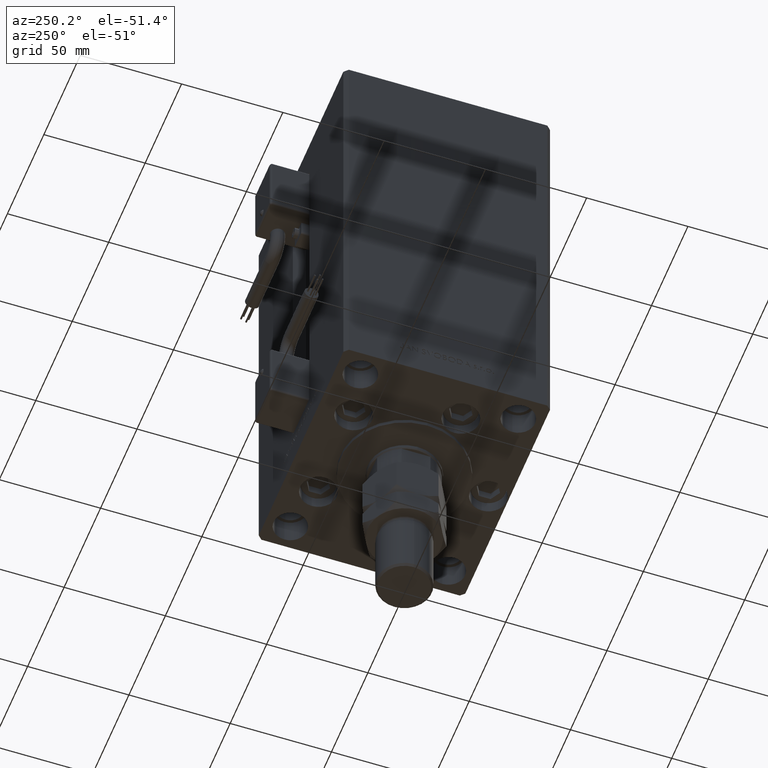
[diagram: clean part render]
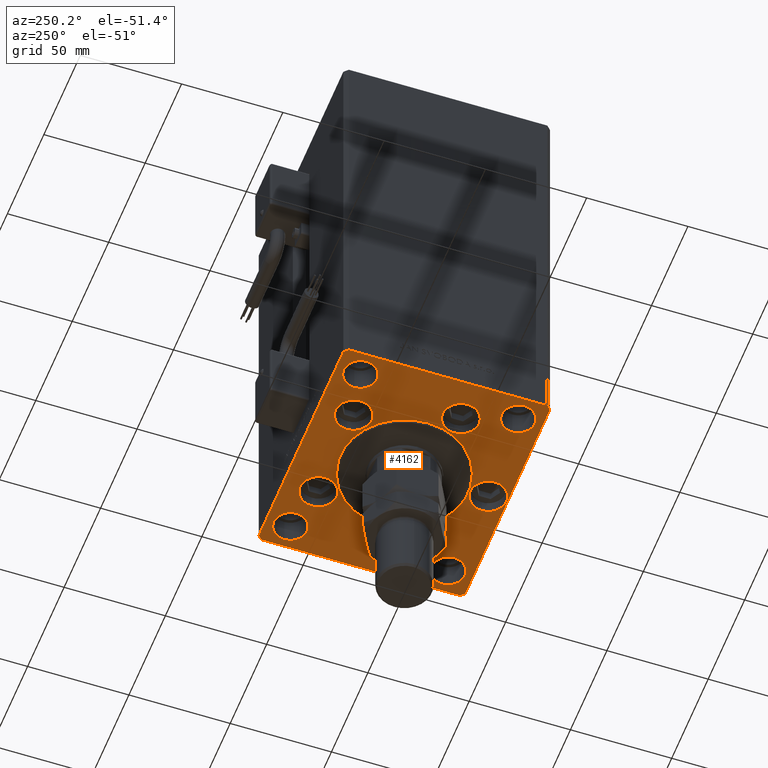
[diagram: same view with one face highlighted and labeled with its STEP entity id]
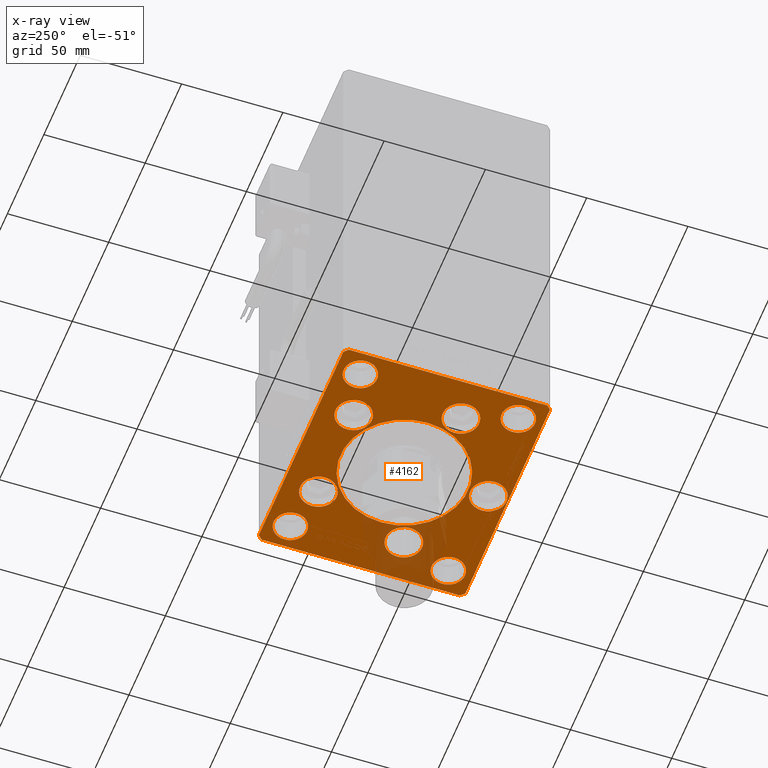
[diagram: x-ray of the same camera — body ghosted, the highlighted face saturated]
A machine part, auxiliary view. The second image highlights one B-rep face of the part: STEP entity #4162.
The next image is the same camera in x-ray: the body ghosted, the highlighted face saturated — about 12% of this face is hidden behind the body in this view.
In plain terms, the highlighted planar face has unit normal (0, 0, -1).
Its self-contained STEP definition (entity closure, byte-faithful):
#3 = DIRECTION ( 'NONE',  ( 1.000000000000000000, 0.000000000000000000, 0.000000000000000000 ) ) ;
#270 = DIRECTION ( 'NONE',  ( 0.7071067811865474617, 0.7071067811865474617, 0.000000000000000000 ) ) ;
#516 = VECTOR ( 'NONE', #43022, 1000.000000000000000 ) ;
#787 = EDGE_CURVE ( 'NONE', #1171, #52553, #13018, .T. ) ;
#1053 = CIRCLE ( 'NONE', #47989, 9.000000000000001776 ) ;
#1070 = EDGE_CURVE ( 'NONE', #28854, #34548, #48661, .T. ) ;
#1171 = VERTEX_POINT ( 'NONE', #6435 ) ;
#1208 = DIRECTION ( 'NONE',  ( 0.000000000000000000, 0.000000000000000000, 1.000000000000000000 ) ) ;
#1584 = CARTESIAN_POINT ( 'NONE',  ( 24.19288941894913592, 33.71874999999998579, 0.000000000000000000 ) ) ;
#2018 = CARTESIAN_POINT ( 'NONE',  ( -9.000000000000000000, -41.50000000000000000, 0.000000000000000000 ) ) ;
#2335 = ORIENTED_EDGE ( 'NONE', *, *, #17684, .F. ) ;
#2910 = ORIENTED_EDGE ( 'NONE', *, *, #1070, .F. ) ;
#3085 = DIRECTION ( 'NONE',  ( 0.000000000000000000, -1.000000000000000000, 0.000000000000000000 ) ) ;
#3166 = EDGE_CURVE ( 'NONE', #49114, #26949, #14690, .T. ) ;
#3219 = CIRCLE ( 'NONE', #29286, 9.000000000000001776 ) ;
#3311 = AXIS2_PLACEMENT_3D ( 'NONE', #31644, #10960, #24272 ) ;
#3461 = CARTESIAN_POINT ( 'NONE',  ( 48.00000000000000000, -39.00000000000001421, 0.000000000000000000 ) ) ;
#4017 = DIRECTION ( 'NONE',  ( 1.000000000000000000, 0.000000000000000000, 0.000000000000000000 ) ) ;
#4162 = ADVANCED_FACE ( 'NONE', ( #44942, #7142, #35980, #19928, #36509, #15583, #32445, #49032, #48496, #7670, #11229 ), #44413, .T. ) ;
#4231 = CARTESIAN_POINT ( 'NONE',  ( 48.00000000000000000, -39.00000000000001421, 0.000000000000000000 ) ) ;
#4404 = EDGE_CURVE ( 'NONE', #30473, #11347, #47822, .T. ) ;
#5153 = CIRCLE ( 'NONE', #44222, 9.000000000000000000 ) ;
#5740 = CARTESIAN_POINT ( 'NONE',  ( 58.00000000000000000, 51.00000000000000711, 0.000000000000000000 ) ) ;
#6017 = EDGE_LOOP ( 'NONE', ( #2335, #43637 ) ) ;
#6213 = AXIS2_PLACEMENT_3D ( 'NONE', #17546, #46118, #9642 ) ;
#6435 = CARTESIAN_POINT ( 'NONE',  ( -56.24999999999999289, -39.00000000000001421, 0.000000000000000000 ) ) ;
#6474 = VECTOR ( 'NONE', #8550, 1000.000000000000000 ) ;
#6558 = CARTESIAN_POINT ( 'NONE',  ( -15.19288941894913592, 33.71874999999998579, 0.000000000000000000 ) ) ;
#6717 = ORIENTED_EDGE ( 'NONE', *, *, #8187, .F. ) ;
#6801 = CARTESIAN_POINT ( 'NONE',  ( -24.19288941894913592, 33.71874999999998579, 0.000000000000000000 ) ) ;
#6839 = ORIENTED_EDGE ( 'NONE', *, *, #4404, .T. ) ;
#6887 = AXIS2_PLACEMENT_3D ( 'NONE', #4231, #24137, #29018 ) ;
#7142 = FACE_BOUND ( 'NONE', #6017, .T. ) ;
#7587 = LINE ( 'NONE', #52757, #48886 ) ;
#7670 = FACE_BOUND ( 'NONE', #11201, .T. ) ;
#7832 = AXIS2_PLACEMENT_3D ( 'NONE', #28272, #24452, #4017 ) ;
#7840 = CARTESIAN_POINT ( 'NONE',  ( 0.000000000000000000, -6.938893903907228378E-15, 0.000000000000000000 ) ) ;
#8187 = EDGE_CURVE ( 'NONE', #43277, #39132, #48801, .T. ) ;
#8513 = CIRCLE ( 'NONE', #11983, 9.000000000000000000 ) ;
#8550 = DIRECTION ( 'NONE',  ( 1.000000000000000000, 9.570888143320313916E-16, 0.000000000000000000 ) ) ;
#8692 = VERTEX_POINT ( 'NONE', #45988 ) ;
#8938 = DIRECTION ( 'NONE',  ( -0.000000000000000000, 0.000000000000000000, 1.000000000000000000 ) ) ;
#9642 = DIRECTION ( 'NONE',  ( 1.000000000000000000, 0.000000000000000000, 0.000000000000000000 ) ) ;
#9872 = DIRECTION ( 'NONE',  ( 0.000000000000000000, 0.000000000000000000, 1.000000000000000000 ) ) ;
#9917 = EDGE_LOOP ( 'NONE', ( #14618, #49963 ) ) ;
#10388 = CARTESIAN_POINT ( 'NONE',  ( -48.00000000000000000, 39.00000000000000711, 0.000000000000000000 ) ) ;
#10391 = VECTOR ( 'NONE', #3085, 1000.000000000000000 ) ;
#10704 = CIRCLE ( 'NONE', #45453, 8.249999999999992895 ) ;
#10744 = CARTESIAN_POINT ( 'NONE',  ( -48.00000000000000000, 39.00000000000000711, 0.000000000000000000 ) ) ;
#10874 = CARTESIAN_POINT ( 'NONE',  ( 56.24999999999999289, 39.00000000000000000, 0.000000000000000000 ) ) ;
#10960 = DIRECTION ( 'NONE',  ( 0.000000000000000000, 0.000000000000000000, 1.000000000000000000 ) ) ;
#11164 = DIRECTION ( 'NONE',  ( 0.000000000000000000, 0.000000000000000000, 1.000000000000000000 ) ) ;
#11201 = EDGE_LOOP ( 'NONE', ( #17853, #39338 ) ) ;
#11229 = FACE_OUTER_BOUND ( 'NONE', #17837, .T. ) ;
#11260 = AXIS2_PLACEMENT_3D ( 'NONE', #7840, #53003, #15752 ) ;
#11347 = VERTEX_POINT ( 'NONE', #50101 ) ;
#11592 = VERTEX_POINT ( 'NONE', #43211 ) ;
#11639 = DIRECTION ( 'NONE',  ( -0.7071067811865536790, -0.7071067811865414665, 0.000000000000000000 ) ) ;
#11983 = AXIS2_PLACEMENT_3D ( 'NONE', #40729, #36647, #49962 ) ;
#12045 = CARTESIAN_POINT ( 'NONE',  ( -33.19288941894913592, 33.71874999999998579, 0.000000000000000000 ) ) ;
#12288 = CARTESIAN_POINT ( 'NONE',  ( 60.00000000000001421, -48.99999999999992895, 0.000000000000000000 ) ) ;
#12366 = CIRCLE ( 'NONE', #45387, 9.000000000000000000 ) ;
#12895 = CARTESIAN_POINT ( 'NONE',  ( -57.99999999999998579, 50.99999999999997868, 0.000000000000000000 ) ) ;
#13002 = VERTEX_POINT ( 'NONE', #35348 ) ;
#13018 = CIRCLE ( 'NONE', #40832, 8.249999999999992895 ) ;
#13279 = CARTESIAN_POINT ( 'NONE',  ( 58.00000000000001421, -50.99999999999992184, 0.000000000000000000 ) ) ;
#13430 = DIRECTION ( 'NONE',  ( 1.000000000000000000, 0.000000000000000000, 0.000000000000000000 ) ) ;
#13447 = LINE ( 'NONE', #46900, #44840 ) ;
#13975 = ORIENTED_EDGE ( 'NONE', *, *, #45105, .F. ) ;
#14275 = CIRCLE ( 'NONE', #45538, 8.249999999999992895 ) ;
#14297 = VERTEX_POINT ( 'NONE', #13279 ) ;
#14418 = EDGE_LOOP ( 'NONE', ( #6717, #33985 ) ) ;
#14463 = CARTESIAN_POINT ( 'NONE',  ( -48.12657522565563539, -13.83333333333332682, 0.000000000000000000 ) ) ;
#14511 = ORIENTED_EDGE ( 'NONE', *, *, #47875, .T. ) ;
#14618 = ORIENTED_EDGE ( 'NONE', *, *, #16684, .F. ) ;
#14690 = CIRCLE ( 'NONE', #6887, 8.249999999999992895 ) ;
#15167 = DIRECTION ( 'NONE',  ( 0.000000000000000000, 0.000000000000000000, 1.000000000000000000 ) ) ;
#15290 = DIRECTION ( 'NONE',  ( 0.000000000000000000, 0.000000000000000000, 1.000000000000000000 ) ) ;
#15300 = CIRCLE ( 'NONE', #20530, 9.000000000000001776 ) ;
#15470 = CIRCLE ( 'NONE', #29345, 8.249999999999992895 ) ;
#15475 = CARTESIAN_POINT ( 'NONE',  ( -56.24999999999999289, 39.00000000000000711, 0.000000000000000000 ) ) ;
#15523 = EDGE_CURVE ( 'NONE', #53262, #30461, #1053, .T. ) ;
#15560 = DIRECTION ( 'NONE',  ( 1.000000000000000000, 0.000000000000000000, 0.000000000000000000 ) ) ;
#15583 = FACE_BOUND ( 'NONE', #26608, .T. ) ;
#15640 = CARTESIAN_POINT ( 'NONE',  ( -39.75000000000000711, -39.00000000000001421, 0.000000000000000000 ) ) ;
#15752 = DIRECTION ( 'NONE',  ( 1.000000000000000000, 0.000000000000000000, 0.000000000000000000 ) ) ;
#15785 = ORIENTED_EDGE ( 'NONE', *, *, #43882, .F. ) ;
#16049 = CARTESIAN_POINT ( 'NONE',  ( 56.24999999999999289, -39.00000000000001421, 0.000000000000000000 ) ) ;
#16503 = DIRECTION ( 'NONE',  ( 1.000000000000000000, 0.000000000000000000, 0.000000000000000000 ) ) ;
#16684 = EDGE_CURVE ( 'NONE', #30461, #53262, #34896, .T. ) ;
#16760 = AXIS2_PLACEMENT_3D ( 'NONE', #1584, #38867, #34800 ) ;
#16972 = VERTEX_POINT ( 'NONE', #18605 ) ;
#16983 = EDGE_LOOP ( 'NONE', ( #13975, #46044 ) ) ;
#17110 = CARTESIAN_POINT ( 'NONE',  ( 0.000000000000000000, 0.000000000000000000, 0.000000000000000000 ) ) ;
#17265 = VECTOR ( 'NONE', #270, 1000.000000000000114 ) ;
#17546 = CARTESIAN_POINT ( 'NONE',  ( 48.00000000000000000, 39.00000000000000000, 0.000000000000000000 ) ) ;
#17684 = EDGE_CURVE ( 'NONE', #37433, #22456, #12366, .T. ) ;
#17837 = EDGE_LOOP ( 'NONE', ( #40743, #51786, #33956, #14511, #38005, #42129, #6839, #19976 ) ) ;
#17853 = ORIENTED_EDGE ( 'NONE', *, *, #3166, .F. ) ;
#18237 = ORIENTED_EDGE ( 'NONE', *, *, #37052, .F. ) ;
#18343 = EDGE_CURVE ( 'NONE', #11592, #8692, #7587, .T. ) ;
#18382 = CARTESIAN_POINT ( 'NONE',  ( 60.00000000000001421, 49.00000000000002842, 0.000000000000000000 ) ) ;
#18605 = CARTESIAN_POINT ( 'NONE',  ( 9.000000000000000000, -41.50000000000000000, 0.000000000000000000 ) ) ;
#18666 = EDGE_CURVE ( 'NONE', #16972, #18902, #33273, .T. ) ;
#18902 = VERTEX_POINT ( 'NONE', #2018 ) ;
#19544 = DIRECTION ( 'NONE',  ( 0.000000000000000000, 0.000000000000000000, 1.000000000000000000 ) ) ;
#19843 = CIRCLE ( 'NONE', #3311, 9.000000000000001776 ) ;
#19894 = EDGE_CURVE ( 'NONE', #39132, #43277, #10704, .T. ) ;
#19928 = FACE_BOUND ( 'NONE', #16983, .T. ) ;
#19959 = DIRECTION ( 'NONE',  ( 0.000000000000000000, 0.000000000000000000, 1.000000000000000000 ) ) ;
#19976 = ORIENTED_EDGE ( 'NONE', *, *, #47086, .T. ) ;
#20086 = DIRECTION ( 'NONE',  ( 0.000000000000000000, 0.000000000000000000, 1.000000000000000000 ) ) ;
#20196 = DIRECTION ( 'NONE',  ( 1.000000000000000000, 0.000000000000000000, 0.000000000000000000 ) ) ;
#20390 = DIRECTION ( 'NONE',  ( 1.000000000000000000, 0.000000000000000000, 0.000000000000000000 ) ) ;
#20530 = AXIS2_PLACEMENT_3D ( 'NONE', #28062, #23157, #52264 ) ;
#20743 = ORIENTED_EDGE ( 'NONE', *, *, #18666, .F. ) ;
#21520 = VERTEX_POINT ( 'NONE', #35333 ) ;
#21605 = DIRECTION ( 'NONE',  ( -0.7071067811865536790, 0.7071067811865414665, 0.000000000000000000 ) ) ;
#22456 = VERTEX_POINT ( 'NONE', #12045 ) ;
#22676 = VERTEX_POINT ( 'NONE', #5740 ) ;
#22745 = CARTESIAN_POINT ( 'NONE',  ( 48.12657522565563539, -13.83333333333332860, 0.000000000000000000 ) ) ;
#23157 = DIRECTION ( 'NONE',  ( 0.000000000000000000, 0.000000000000000000, 1.000000000000000000 ) ) ;
#23722 = VERTEX_POINT ( 'NONE', #18382 ) ;
#23856 = DIRECTION ( 'NONE',  ( 1.000000000000000000, 0.000000000000000000, 0.000000000000000000 ) ) ;
#24137 = DIRECTION ( 'NONE',  ( 0.000000000000000000, 0.000000000000000000, 1.000000000000000000 ) ) ;
#24153 = EDGE_LOOP ( 'NONE', ( #32786, #34506 ) ) ;
#24272 = DIRECTION ( 'NONE',  ( 1.000000000000000000, 0.000000000000000000, 0.000000000000000000 ) ) ;
#24409 = CARTESIAN_POINT ( 'NONE',  ( -30.12657522565563539, -13.83333333333332860, 0.000000000000000000 ) ) ;
#24452 = DIRECTION ( 'NONE',  ( 0.000000000000000000, 0.000000000000000000, 1.000000000000000000 ) ) ;
#24736 = ORIENTED_EDGE ( 'NONE', *, *, #44522, .F. ) ;
#24770 = CARTESIAN_POINT ( 'NONE',  ( -48.00000000000000000, -39.00000000000001421, 0.000000000000000000 ) ) ;
#25142 = VECTOR ( 'NONE', #35492, 1000.000000000000000 ) ;
#25751 = EDGE_CURVE ( 'NONE', #23722, #22676, #13447, .T. ) ;
#25845 = AXIS2_PLACEMENT_3D ( 'NONE', #10388, #15290, #15560 ) ;
#26608 = EDGE_LOOP ( 'NONE', ( #2910, #45060 ) ) ;
#26684 = CARTESIAN_POINT ( 'NONE',  ( 31.50000000000000000, -3.081256486593065689E-15, 0.000000000000000000 ) ) ;
#26949 = VERTEX_POINT ( 'NONE', #38112 ) ;
#26983 = VERTEX_POINT ( 'NONE', #26684 ) ;
#27329 = CARTESIAN_POINT ( 'NONE',  ( -60.00000000000000000, 49.00000000000000000, 0.000000000000000000 ) ) ;
#27858 = CARTESIAN_POINT ( 'NONE',  ( -48.00000000000000000, -39.00000000000001421, 0.000000000000000000 ) ) ;
#28062 = CARTESIAN_POINT ( 'NONE',  ( -39.12657522565563539, -13.83333333333332860, 0.000000000000000000 ) ) ;
#28272 = CARTESIAN_POINT ( 'NONE',  ( -39.12657522565563539, -13.83333333333332860, 0.000000000000000000 ) ) ;
#28392 = DIRECTION ( 'NONE',  ( 1.000000000000000000, 0.000000000000000000, 0.000000000000000000 ) ) ;
#28854 = VERTEX_POINT ( 'NONE', #24409 ) ;
#29018 = DIRECTION ( 'NONE',  ( 1.000000000000000000, 0.000000000000000000, 0.000000000000000000 ) ) ;
#29286 = AXIS2_PLACEMENT_3D ( 'NONE', #48256, #19959, #28392 ) ;
#29345 = AXIS2_PLACEMENT_3D ( 'NONE', #10744, #1208, #34970 ) ;
#29480 = AXIS2_PLACEMENT_3D ( 'NONE', #17110, #8938, #20196 ) ;
#29520 = VECTOR ( 'NONE', #11639, 1000.000000000000000 ) ;
#29854 = VERTEX_POINT ( 'NONE', #15475 ) ;
#29995 = EDGE_CURVE ( 'NONE', #26949, #49114, #37889, .T. ) ;
#30208 = VERTEX_POINT ( 'NONE', #22745 ) ;
#30461 = VERTEX_POINT ( 'NONE', #41999 ) ;
#30473 = VERTEX_POINT ( 'NONE', #12895 ) ;
#30794 = LINE ( 'NONE', #42758, #516 ) ;
#31512 = EDGE_CURVE ( 'NONE', #21520, #30208, #3219, .T. ) ;
#31644 = CARTESIAN_POINT ( 'NONE',  ( 39.12657522565563539, -13.83333333333332860, 0.000000000000000000 ) ) ;
#32424 = AXIS2_PLACEMENT_3D ( 'NONE', #52692, #15167, #23856 ) ;
#32445 = FACE_BOUND ( 'NONE', #14418, .T. ) ;
#32786 = ORIENTED_EDGE ( 'NONE', *, *, #50894, .F. ) ;
#33268 = DIRECTION ( 'NONE',  ( 0.000000000000000000, 0.000000000000000000, 1.000000000000000000 ) ) ;
#33273 = CIRCLE ( 'NONE', #32424, 9.000000000000000000 ) ;
#33956 = ORIENTED_EDGE ( 'NONE', *, *, #46454, .T. ) ;
#33985 = ORIENTED_EDGE ( 'NONE', *, *, #19894, .F. ) ;
#34330 = EDGE_LOOP ( 'NONE', ( #20743, #24736 ) ) ;
#34506 = ORIENTED_EDGE ( 'NONE', *, *, #35964, .F. ) ;
#34548 = VERTEX_POINT ( 'NONE', #14463 ) ;
#34800 = DIRECTION ( 'NONE',  ( 1.000000000000000000, 0.000000000000000000, 0.000000000000000000 ) ) ;
#34896 = CIRCLE ( 'NONE', #16760, 9.000000000000001776 ) ;
#34970 = DIRECTION ( 'NONE',  ( 1.000000000000000000, 0.000000000000000000, 0.000000000000000000 ) ) ;
#34999 = VERTEX_POINT ( 'NONE', #12288 ) ;
#35333 = CARTESIAN_POINT ( 'NONE',  ( 30.12657522565563539, -13.83333333333332682, 0.000000000000000000 ) ) ;
#35348 = CARTESIAN_POINT ( 'NONE',  ( -39.75000000000000711, 39.00000000000000711, 0.000000000000000000 ) ) ;
#35492 = DIRECTION ( 'NONE',  ( 0.000000000000000000, 1.000000000000000000, 0.000000000000000000 ) ) ;
#35768 = LINE ( 'NONE', #44197, #25142 ) ;
#35964 = EDGE_CURVE ( 'NONE', #26983, #48942, #45186, .T. ) ;
#35980 = FACE_BOUND ( 'NONE', #9917, .T. ) ;
#36120 = DIRECTION ( 'NONE',  ( 1.000000000000000000, 0.000000000000000000, 0.000000000000000000 ) ) ;
#36385 = CARTESIAN_POINT ( 'NONE',  ( 24.19288941894913592, 33.71874999999998579, 0.000000000000000000 ) ) ;
#36509 = FACE_BOUND ( 'NONE', #34330, .T. ) ;
#36539 = DIRECTION ( 'NONE',  ( 1.000000000000000000, 0.000000000000000000, 0.000000000000000000 ) ) ;
#36647 = DIRECTION ( 'NONE',  ( 0.000000000000000000, 0.000000000000000000, 1.000000000000000000 ) ) ;
#36706 = ORIENTED_EDGE ( 'NONE', *, *, #787, .F. ) ;
#36747 = EDGE_CURVE ( 'NONE', #8692, #14297, #36860, .T. ) ;
#36860 = LINE ( 'NONE', #45831, #6474 ) ;
#37052 = EDGE_CURVE ( 'NONE', #52553, #1171, #14275, .T. ) ;
#37433 = VERTEX_POINT ( 'NONE', #6558 ) ;
#37889 = CIRCLE ( 'NONE', #43971, 8.249999999999992895 ) ;
#38005 = ORIENTED_EDGE ( 'NONE', *, *, #25751, .T. ) ;
#38032 = CARTESIAN_POINT ( 'NONE',  ( 15.19288941894913236, 33.71874999999998579, 0.000000000000000000 ) ) ;
#38112 = CARTESIAN_POINT ( 'NONE',  ( 39.75000000000000711, -39.00000000000001421, 0.000000000000000000 ) ) ;
#38867 = DIRECTION ( 'NONE',  ( 0.000000000000000000, 0.000000000000000000, 1.000000000000000000 ) ) ;
#39132 = VERTEX_POINT ( 'NONE', #52110 ) ;
#39338 = ORIENTED_EDGE ( 'NONE', *, *, #29995, .F. ) ;
#40464 = EDGE_CURVE ( 'NONE', #22676, #30473, #30794, .T. ) ;
#40486 = DIRECTION ( 'NONE',  ( 1.000000000000000000, 0.000000000000000000, 0.000000000000000000 ) ) ;
#40580 = EDGE_CURVE ( 'NONE', #34548, #28854, #15300, .T. ) ;
#40729 = CARTESIAN_POINT ( 'NONE',  ( 0.000000000000000000, -41.50000000000000000, 0.000000000000000000 ) ) ;
#40743 = ORIENTED_EDGE ( 'NONE', *, *, #18343, .T. ) ;
#40832 = AXIS2_PLACEMENT_3D ( 'NONE', #24770, #41365, #3 ) ;
#41365 = DIRECTION ( 'NONE',  ( 0.000000000000000000, 0.000000000000000000, 1.000000000000000000 ) ) ;
#41492 = CIRCLE ( 'NONE', #25845, 8.249999999999992895 ) ;
#41729 = DIRECTION ( 'NONE',  ( 0.000000000000000000, 0.000000000000000000, 1.000000000000000000 ) ) ;
#41779 = DIRECTION ( 'NONE',  ( 0.000000000000000000, 0.000000000000000000, 1.000000000000000000 ) ) ;
#41917 = CARTESIAN_POINT ( 'NONE',  ( -31.50000000000000000, -6.938893903907228378E-15, 0.000000000000000000 ) ) ;
#41999 = CARTESIAN_POINT ( 'NONE',  ( 33.19288941894913592, 33.71874999999998579, 0.000000000000000000 ) ) ;
#42129 = ORIENTED_EDGE ( 'NONE', *, *, #40464, .T. ) ;
#42243 = CARTESIAN_POINT ( 'NONE',  ( 48.00000000000000000, 39.00000000000000000, 0.000000000000000000 ) ) ;
#42565 = AXIS2_PLACEMENT_3D ( 'NONE', #50169, #41729, #13430 ) ;
#42758 = CARTESIAN_POINT ( 'NONE',  ( 58.00000000000000000, 51.00000000000000711, 0.000000000000000000 ) ) ;
#43022 = DIRECTION ( 'NONE',  ( -1.000000000000000000, -2.392722035830078972E-16, 0.000000000000000000 ) ) ;
#43055 = DIRECTION ( 'NONE',  ( 1.000000000000000000, 0.000000000000000000, 0.000000000000000000 ) ) ;
#43211 = CARTESIAN_POINT ( 'NONE',  ( -60.00000000000000000, -49.00000000000004263, 0.000000000000000000 ) ) ;
#43230 = EDGE_CURVE ( 'NONE', #29854, #13002, #41492, .T. ) ;
#43277 = VERTEX_POINT ( 'NONE', #10874 ) ;
#43410 = EDGE_LOOP ( 'NONE', ( #15785, #47917 ) ) ;
#43637 = ORIENTED_EDGE ( 'NONE', *, *, #49049, .F. ) ;
#43882 = EDGE_CURVE ( 'NONE', #13002, #29854, #15470, .T. ) ;
#43971 = AXIS2_PLACEMENT_3D ( 'NONE', #3461, #20086, #40486 ) ;
#44197 = CARTESIAN_POINT ( 'NONE',  ( 60.00000000000001421, -48.99999999999992895, 0.000000000000000000 ) ) ;
#44222 = AXIS2_PLACEMENT_3D ( 'NONE', #6801, #11164, #20390 ) ;
#44413 = PLANE ( 'NONE',  #29480 ) ;
#44522 = EDGE_CURVE ( 'NONE', #18902, #16972, #8513, .T. ) ;
#44840 = VECTOR ( 'NONE', #21605, 1000.000000000000000 ) ;
#44942 = FACE_BOUND ( 'NONE', #24153, .T. ) ;
#45060 = ORIENTED_EDGE ( 'NONE', *, *, #40580, .F. ) ;
#45105 = EDGE_CURVE ( 'NONE', #30208, #21520, #19843, .T. ) ;
#45110 = CIRCLE ( 'NONE', #11260, 31.50000000000000000 ) ;
#45186 = CIRCLE ( 'NONE', #42565, 31.50000000000000000 ) ;
#45387 = AXIS2_PLACEMENT_3D ( 'NONE', #46401, #41779, #16503 ) ;
#45453 = AXIS2_PLACEMENT_3D ( 'NONE', #42243, #9872, #43055 ) ;
#45538 = AXIS2_PLACEMENT_3D ( 'NONE', #27858, #33268, #36539 ) ;
#45690 = EDGE_LOOP ( 'NONE', ( #18237, #36706 ) ) ;
#45831 = CARTESIAN_POINT ( 'NONE',  ( -58.00000000000000711, -51.00000000000002842, 0.000000000000000000 ) ) ;
#45973 = LINE ( 'NONE', #50064, #17265 ) ;
#45988 = CARTESIAN_POINT ( 'NONE',  ( -58.00000000000000711, -51.00000000000002842, 0.000000000000000000 ) ) ;
#46044 = ORIENTED_EDGE ( 'NONE', *, *, #31512, .F. ) ;
#46118 = DIRECTION ( 'NONE',  ( 0.000000000000000000, 0.000000000000000000, 1.000000000000000000 ) ) ;
#46401 = CARTESIAN_POINT ( 'NONE',  ( -24.19288941894913592, 33.71874999999998579, 0.000000000000000000 ) ) ;
#46454 = EDGE_CURVE ( 'NONE', #14297, #34999, #45973, .T. ) ;
#46900 = CARTESIAN_POINT ( 'NONE',  ( 60.00000000000001421, 49.00000000000002842, 0.000000000000000000 ) ) ;
#47086 = EDGE_CURVE ( 'NONE', #11347, #11592, #52616, .T. ) ;
#47822 = LINE ( 'NONE', #51903, #29520 ) ;
#47875 = EDGE_CURVE ( 'NONE', #34999, #23722, #35768, .T. ) ;
#47917 = ORIENTED_EDGE ( 'NONE', *, *, #43230, .F. ) ;
#47989 = AXIS2_PLACEMENT_3D ( 'NONE', #36385, #19544, #36120 ) ;
#48256 = CARTESIAN_POINT ( 'NONE',  ( 39.12657522565563539, -13.83333333333332860, 0.000000000000000000 ) ) ;
#48496 = FACE_BOUND ( 'NONE', #45690, .T. ) ;
#48661 = CIRCLE ( 'NONE', #7832, 9.000000000000001776 ) ;
#48801 = CIRCLE ( 'NONE', #6213, 8.249999999999992895 ) ;
#48886 = VECTOR ( 'NONE', #48949, 1000.000000000000114 ) ;
#48942 = VERTEX_POINT ( 'NONE', #41917 ) ;
#48949 = DIRECTION ( 'NONE',  ( 0.7071067811865474617, -0.7071067811865474617, 0.000000000000000000 ) ) ;
#49032 = FACE_BOUND ( 'NONE', #43410, .T. ) ;
#49049 = EDGE_CURVE ( 'NONE', #22456, #37433, #5153, .T. ) ;
#49114 = VERTEX_POINT ( 'NONE', #16049 ) ;
#49962 = DIRECTION ( 'NONE',  ( 1.000000000000000000, 0.000000000000000000, 0.000000000000000000 ) ) ;
#49963 = ORIENTED_EDGE ( 'NONE', *, *, #15523, .F. ) ;
#50064 = CARTESIAN_POINT ( 'NONE',  ( 58.00000000000001421, -50.99999999999992184, 0.000000000000000000 ) ) ;
#50101 = CARTESIAN_POINT ( 'NONE',  ( -60.00000000000000000, 49.00000000000000000, 0.000000000000000000 ) ) ;
#50169 = CARTESIAN_POINT ( 'NONE',  ( 0.000000000000000000, -6.938893903907228378E-15, 0.000000000000000000 ) ) ;
#50894 = EDGE_CURVE ( 'NONE', #48942, #26983, #45110, .T. ) ;
#51786 = ORIENTED_EDGE ( 'NONE', *, *, #36747, .T. ) ;
#51903 = CARTESIAN_POINT ( 'NONE',  ( -57.99999999999998579, 50.99999999999997868, 0.000000000000000000 ) ) ;
#52110 = CARTESIAN_POINT ( 'NONE',  ( 39.75000000000000711, 39.00000000000000000, 0.000000000000000000 ) ) ;
#52264 = DIRECTION ( 'NONE',  ( 1.000000000000000000, 0.000000000000000000, 0.000000000000000000 ) ) ;
#52553 = VERTEX_POINT ( 'NONE', #15640 ) ;
#52616 = LINE ( 'NONE', #27329, #10391 ) ;
#52692 = CARTESIAN_POINT ( 'NONE',  ( 0.000000000000000000, -41.50000000000000000, 0.000000000000000000 ) ) ;
#52757 = CARTESIAN_POINT ( 'NONE',  ( -60.00000000000000000, -49.00000000000004263, 0.000000000000000000 ) ) ;
#53003 = DIRECTION ( 'NONE',  ( 0.000000000000000000, 0.000000000000000000, 1.000000000000000000 ) ) ;
#53262 = VERTEX_POINT ( 'NONE', #38032 ) ;